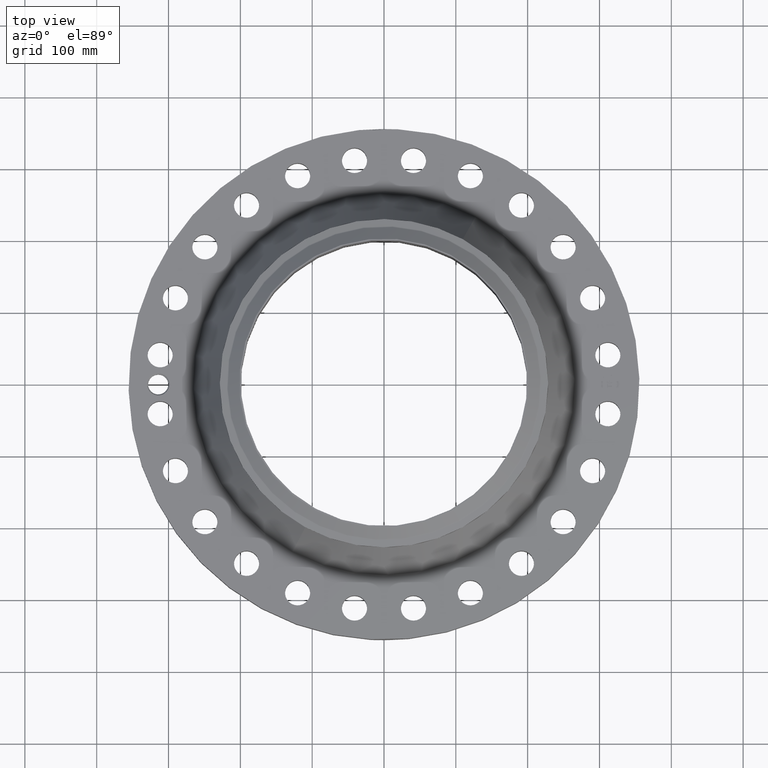
[diagram: clean part render]
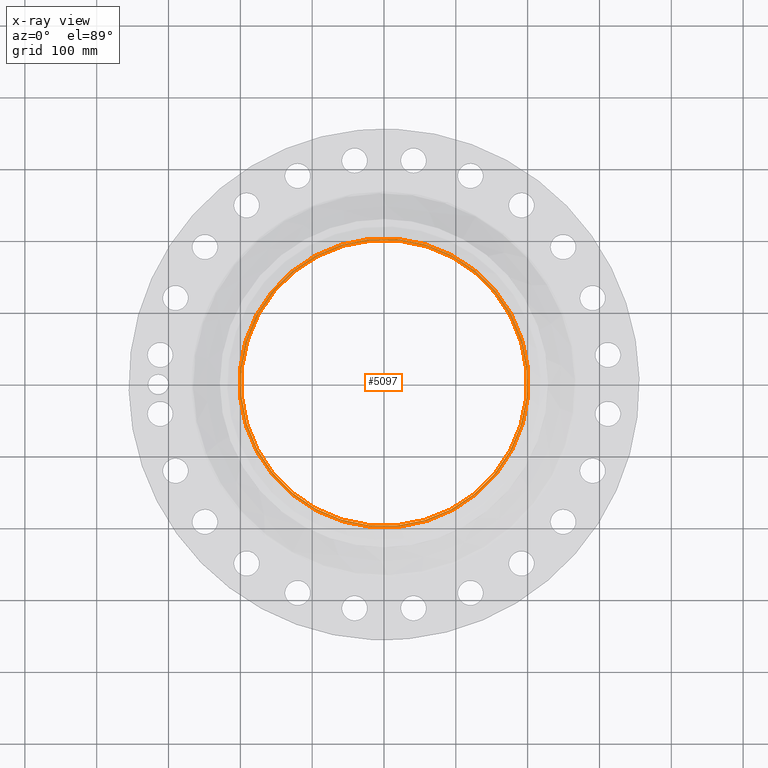
[diagram: x-ray — body ghosted, one internal face saturated and labeled with its STEP entity id]
A machine part, top view, then the same camera in x-ray: the body is ghosted and one INTERNAL B-rep face — a face not visible from any outside direction — is saturated and labeled: STEP entity #5097.
In plain terms, the highlighted planar face has unit normal (0, 0, -1).
Its self-contained STEP definition (entity closure, byte-faithful):
#3916=AXIS2_PLACEMENT_3D('Circle Axis2P3D',#3914,#3915,$) ;
#3984=AXIS2_PLACEMENT_3D('Circle Axis2P3D',#3982,#3983,$) ;
#5073=AXIS2_PLACEMENT_3D('Plane Axis2P3D',#5070,#5071,#5072) ;
#5077=AXIS2_PLACEMENT_3D('Circle Axis2P3D',#5075,#5076,$) ;
#5086=AXIS2_PLACEMENT_3D('Circle Axis2P3D',#5084,#5085,$) ;
#3914=CARTESIAN_POINT('Axis2P3D Location',(0.,0.,6.31000000003)) ;
#3918=CARTESIAN_POINT('Vertex',(3.76061392483,6.8837576155,6.31000000003)) ;
#3920=CARTESIAN_POINT('Vertex',(-3.76061392483,-6.8837576155,6.31000000003)) ;
#3982=CARTESIAN_POINT('Axis2P3D Location',(0.,0.,6.31000000003)) ;
#5070=CARTESIAN_POINT('Axis2P3D Location',(0.,9.00000000004,6.31000000003)) ;
#5075=CARTESIAN_POINT('Axis2P3D Location',(0.,0.,6.31000000003)) ;
#5079=CARTESIAN_POINT('Vertex',(3.79836396724,-6.95285860462,6.31000000003)) ;
#5081=CARTESIAN_POINT('Vertex',(-3.79836396724,6.95285860462,6.31000000003)) ;
#5084=CARTESIAN_POINT('Axis2P3D Location',(0.,0.,6.31000000003)) ;
#3915=DIRECTION('Axis2P3D Direction',(0.,0.,-0.0393700787402)) ;
#3983=DIRECTION('Axis2P3D Direction',(0.,0.,-0.0393700787402)) ;
#5071=DIRECTION('Axis2P3D Direction',(0.,0.,-0.0393700787402)) ;
#5072=DIRECTION('Axis2P3D XDirection',(0.0393700787402,0.,0.)) ;
#5076=DIRECTION('Axis2P3D Direction',(0.,0.,-0.0393700787402)) ;
#5085=DIRECTION('Axis2P3D Direction',(0.,0.,-0.0393700787402)) ;
#5090=ORIENTED_EDGE('',*,*,#5083,.T.) ;
#5091=ORIENTED_EDGE('',*,*,#5088,.T.) ;
#5094=ORIENTED_EDGE('',*,*,#3986,.T.) ;
#5095=ORIENTED_EDGE('',*,*,#3922,.T.) ;
#5096=FACE_BOUND('',#5093,.T.) ;
#5097=ADVANCED_FACE('PartBody',(#5092,#5096),#5074,.F.) ;
#3917=CIRCLE('generated circle',#3916,7.84400000003) ;
#3985=CIRCLE('generated circle',#3984,7.84400000003) ;
#5078=CIRCLE('generated circle',#5077,7.92274015751) ;
#5087=CIRCLE('generated circle',#5086,7.92274015751) ;
#3922=EDGE_CURVE('',#3919,#3921,#3917,.T.) ;
#3986=EDGE_CURVE('',#3921,#3919,#3985,.T.) ;
#5083=EDGE_CURVE('',#5080,#5082,#5078,.F.) ;
#5088=EDGE_CURVE('',#5082,#5080,#5087,.F.) ;
#5089=EDGE_LOOP('',(#5090,#5091)) ;
#5093=EDGE_LOOP('',(#5094,#5095)) ;
#5092=FACE_OUTER_BOUND('',#5089,.T.) ;
#5074=PLANE('',#5073) ;
#3919=VERTEX_POINT('',#3918) ;
#3921=VERTEX_POINT('',#3920) ;
#5080=VERTEX_POINT('',#5079) ;
#5082=VERTEX_POINT('',#5081) ;